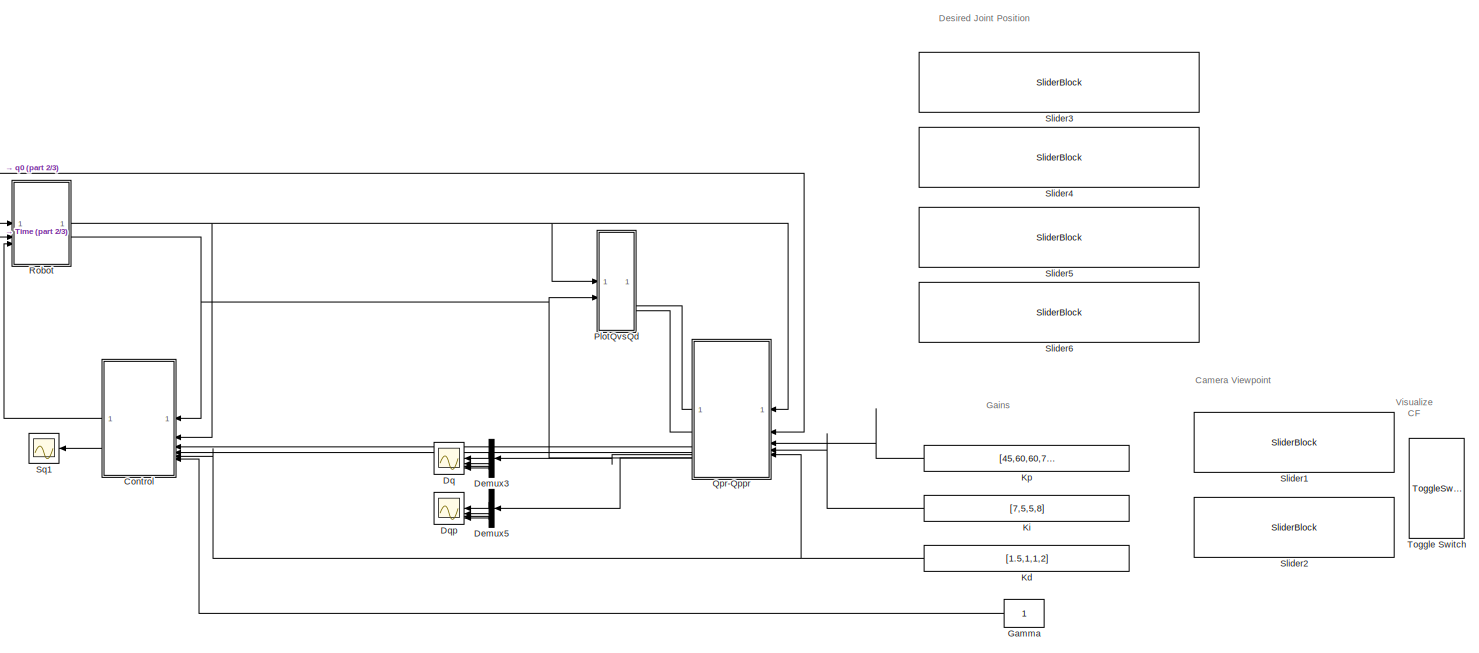
[diagram: root canvas - part 1/3, most of the canvas]
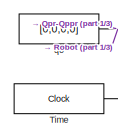
[diagram: root canvas - part 2/3, middle left region]
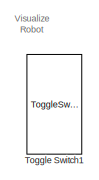
[diagram: root canvas - part 3/3, bottom right region]
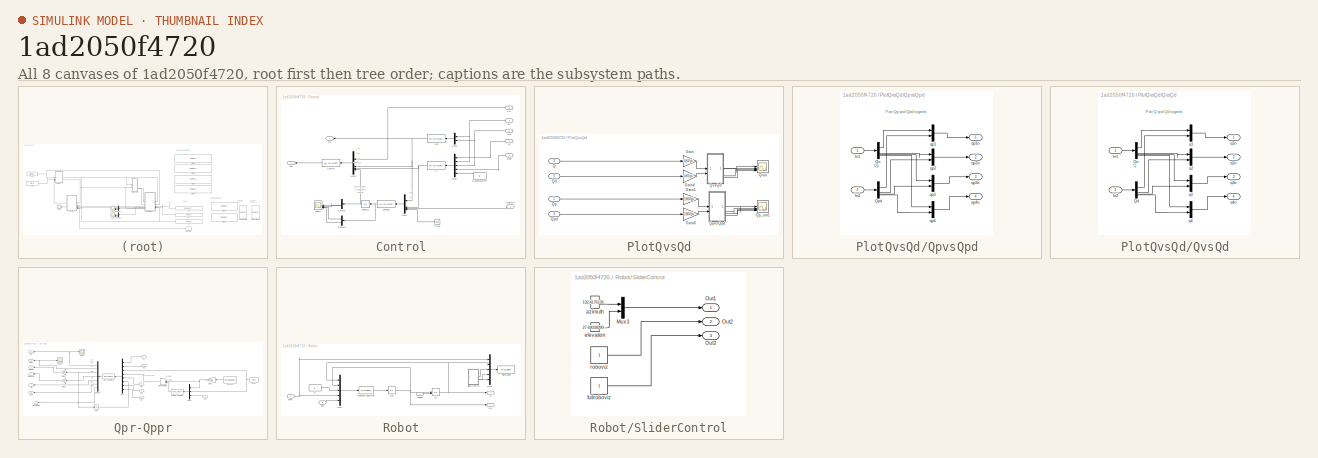
[diagram: thumbnail index - all 8 canvases of the model, root first then tree order]
MODEL slx_1ad2050f4720
KIND model
CONFIG AbsTol = auto
CONFIG EnableMultiTasking = on
CONFIG FixedStep = 0.001
CONFIG MaxStep = auto
CONFIG MinStep = auto
CONFIG RelTol = 1e-3
CONFIG SampleTimeConstraint = Unconstrained
CONFIG SolverName = ode1
CONFIG StartTime = 0.0
CONFIG StopTime = 75
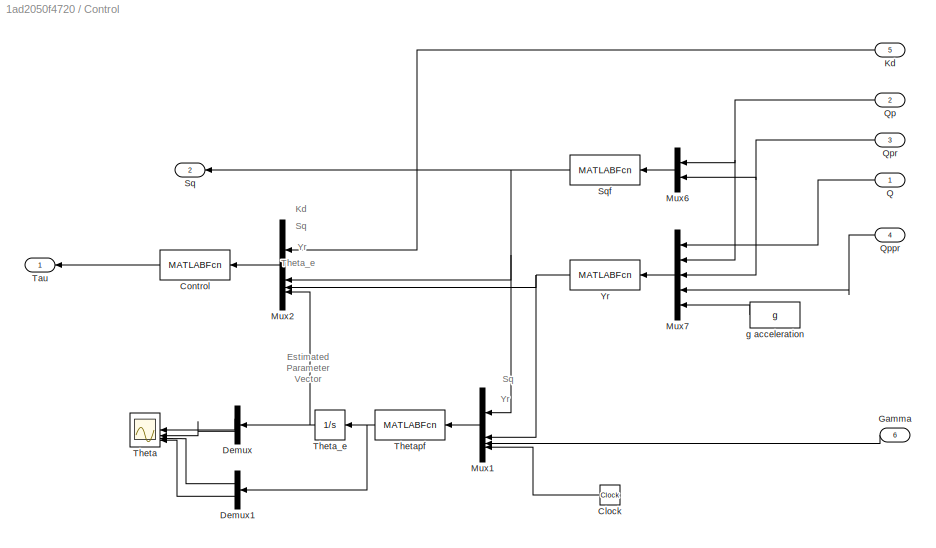
BLOCK [SubSystem] Control
BLOCK [Clock] Control/Clock
BLOCK [MATLABFcn] Control/Control
  MATLABFcn = tauAdaptivePIDR(u)
  OutputDimensions = 4
BLOCK [Demux] Control/Demux
  Outputs = 2
BLOCK [Demux] Control/Demux1
  Outputs = 2
BLOCK [Inport] Control/Gamma
  Port = 6
BLOCK [Inport] Control/Kd
  Port = 5
BLOCK [Mux] Control/Mux1
  DisplayOption = bar
BLOCK [Mux] Control/Mux2
  DisplayOption = bar
BLOCK [Mux] Control/Mux6
  DisplayOption = bar
  Inputs = 2
BLOCK [Mux] Control/Mux7
  DisplayOption = bar
  Inputs = 5
BLOCK [Inport] Control/Q
BLOCK [Inport] Control/Qp
  Port = 2
BLOCK [Inport] Control/Qppr
  Port = 4
BLOCK [Inport] Control/Qpr
  Port = 3
BLOCK [Outport] Control/Sq
  Port = 2
BLOCK [MATLABFcn] Control/Sqf
  MATLABFcn = Sq_abbIRB4(u)
  OutputDimensions = 4
BLOCK [Outport] Control/Tau
BLOCK [Scope] Control/Theta
  Floating = off
  NumInputPorts = 4
  ScopeSpecificationString = Simulink.scopes.TimeScopeBlockCfg('CurrentConfiguration', extmgr.ConfigurationSet(extmgr.Configuration('Core','General UI',true),extmgr.Configuration('Core','Source UI',true),extmgr.Configuration('Sources','WiredSimulink',true,'DataLoggingVariableName','ScopeData1'),extmgr.Configuration('Visuals','Time Domain',true,'SerializedDisplays',{struct('MinYLimReal','-0.74878','MaxYLimReal','2.15666','YLab...<+5805ch>
BLOCK [Integrator] Control/Theta_e
BLOCK [MATLABFcn] Control/Thetapf
  MATLABFcn = thetaHatDot_abbIRB4(u)
  OutputDimensions = 39
BLOCK [MATLABFcn] Control/Yr
  MATLABFcn = Yr_abbIRB4(u)
  OutputDimensions = 4*39
BLOCK [Constant] Control/g acceleration
  Value = g
BLOCK [Demux] Demux3
BLOCK [Demux] Demux5
BLOCK [Scope] Dq
  Floating = off
  NumInputPorts = 4
  ScopeSpecificationString = Simulink.scopes.TimeScopeBlockCfg('CurrentConfiguration', extmgr.ConfigurationSet(extmgr.Configuration('Core','General UI',true),extmgr.Configuration('Core','Source UI',true),extmgr.Configuration('Sources','WiredSimulink',true,'DataLoggingVariableName','ScopeData1'),extmgr.Configuration('Visuals','Time Domain',true,'SerializedDisplays',{struct('MinYLimReal','-0.2828','MaxYLimReal','0.4031','YLabel...<+3452ch>
BLOCK [Scope] Dqp
  Floating = off
  NumInputPorts = 4
  ScopeSpecificationString = Simulink.scopes.TimeScopeBlockCfg('CurrentConfiguration', extmgr.ConfigurationSet(extmgr.Configuration('Core','General UI',true),extmgr.Configuration('Core','Source UI',true),extmgr.Configuration('Sources','WiredSimulink',true,'DataLoggingVariableName','ScopeData1'),extmgr.Configuration('Visuals','Time Domain',true,'SerializedDisplays',{struct('MinYLimReal','-41.44158','MaxYLimReal','90.81224','YL...<+3424ch>
BLOCK [Constant] Gamma
BLOCK [Constant] Kd
  Value = [1.5,1,1,2]
BLOCK [Constant] Ki
  Value = [7,5,5,8]
BLOCK [Constant] Kp
  Value = [45,60,60,75]
BLOCK [SubSystem] PlotQvsQd
  PortSchema = {"entries":[{"content":{"sides":[{"content":{"connectorIds":["In1","In2"]},"type":"ConnectorPlacement.EquallySpacedRectSide","uuid":"0ee6224f-6764-463a-9bad-8b013ba062e4"},{"content":{"connectorIds":["In3","In4"],"side":"RIGHT"},"type":"ConnectorPlacement.EquallySpacedRectSide","uuid":"0aa5cc1a-1f9a-4b91-a80f-0f5a47f21dc5"},{"content":{"connectorIds":[],"side":"TOP"},"type":"ConnectorPlacement.Equ...<+251ch>
BLOCK [Gain] PlotQvsQd/Gain
  Gain = 180/pi
BLOCK [Gain] PlotQvsQd/Gain1
  Gain = 180/pi
BLOCK [Gain] PlotQvsQd/Gain4
  Gain = 180/pi
BLOCK [Gain] PlotQvsQd/Gain6
  Gain = 180/pi
BLOCK [Inport] PlotQvsQd/Q
  Port = 2
BLOCK [Inport] PlotQvsQd/Qd
  Port = 3
BLOCK [Scope] PlotQvsQd/Qout
  Floating = off
  NumInputPorts = 4
  ScopeSpecificationString = Simulink.scopes.TimeScopeBlockCfg('CurrentConfiguration', extmgr.ConfigurationSet(extmgr.Configuration('Core','General UI',true,'FigureColor',[0 0 0]),extmgr.Configuration('Core','Source UI',true),extmgr.Configuration('Sources','WiredSimulink',true,'DataLoggingVariableName','ScopeData1'),extmgr.Configuration('Visuals','Time Domain',true,'SerializedDisplays',{struct('MinYLimReal','-11.54395','MaxYL...<+3854ch>
BLOCK [Inport] PlotQvsQd/Qp
BLOCK [Scope] PlotQvsQd/Qp_out1
  Floating = off
  NumInputPorts = 4
  ScopeSpecificationString = Simulink.scopes.TimeScopeBlockCfg('CurrentConfiguration', extmgr.ConfigurationSet(extmgr.Configuration('Core','General UI',true),extmgr.Configuration('Core','Source UI',true),extmgr.Configuration('Sources','WiredSimulink',true,'DataLoggingVariableName','ScopeData2'),extmgr.Configuration('Visuals','Time Domain',true,'SerializedDisplays',{struct('MinYLimReal','-145.33873','MaxYLimReal','212.08328','...<+3524ch>
BLOCK [Inport] PlotQvsQd/Qpd
  Port = 4
BLOCK [SubSystem] PlotQvsQd/QpvsQpd
BLOCK [Inport] PlotQvsQd/QpvsQpd/In1
BLOCK [Inport] PlotQvsQd/QpvsQpd/In2
  Port = 2
BLOCK [Demux] PlotQvsQd/QpvsQpd/Qo
BLOCK [Demux] PlotQvsQd/QpvsQpd/Qpd
BLOCK [Mux] PlotQvsQd/QpvsQpd/qp1
  DisplayOption = bar
  Inputs = 2
BLOCK [Outport] PlotQvsQd/QpvsQpd/qp1o
BLOCK [Mux] PlotQvsQd/QpvsQpd/qp2
  DisplayOption = bar
  Inputs = 2
BLOCK [Outport] PlotQvsQd/QpvsQpd/qp2o
  Port = 2
BLOCK [Mux] PlotQvsQd/QpvsQpd/qp3
  DisplayOption = bar
  Inputs = 2
BLOCK [Outport] PlotQvsQd/QpvsQpd/qp3o
  Port = 3
BLOCK [Mux] PlotQvsQd/QpvsQpd/qp4
  DisplayOption = bar
  Inputs = 2
BLOCK [Outport] PlotQvsQd/QpvsQpd/qp4o
  Port = 4
BLOCK [SubSystem] PlotQvsQd/QvsQd
BLOCK [Inport] PlotQvsQd/QvsQd/In1
BLOCK [Inport] PlotQvsQd/QvsQd/In2
  Port = 2
BLOCK [Demux] PlotQvsQd/QvsQd/Qd
BLOCK [Demux] PlotQvsQd/QvsQd/Qo
BLOCK [Mux] PlotQvsQd/QvsQd/q1
  DisplayOption = bar
  Inputs = 2
BLOCK [Outport] PlotQvsQd/QvsQd/q1o
BLOCK [Mux] PlotQvsQd/QvsQd/q2
  DisplayOption = bar
  Inputs = 2
BLOCK [Outport] PlotQvsQd/QvsQd/q2o
  Port = 2
BLOCK [Mux] PlotQvsQd/QvsQd/q3
  DisplayOption = bar
  Inputs = 2
BLOCK [Outport] PlotQvsQd/QvsQd/q3o
  Port = 3
BLOCK [Mux] PlotQvsQd/QvsQd/q4
  DisplayOption = bar
  Inputs = 2
BLOCK [Outport] PlotQvsQd/QvsQd/q4o
  Port = 4
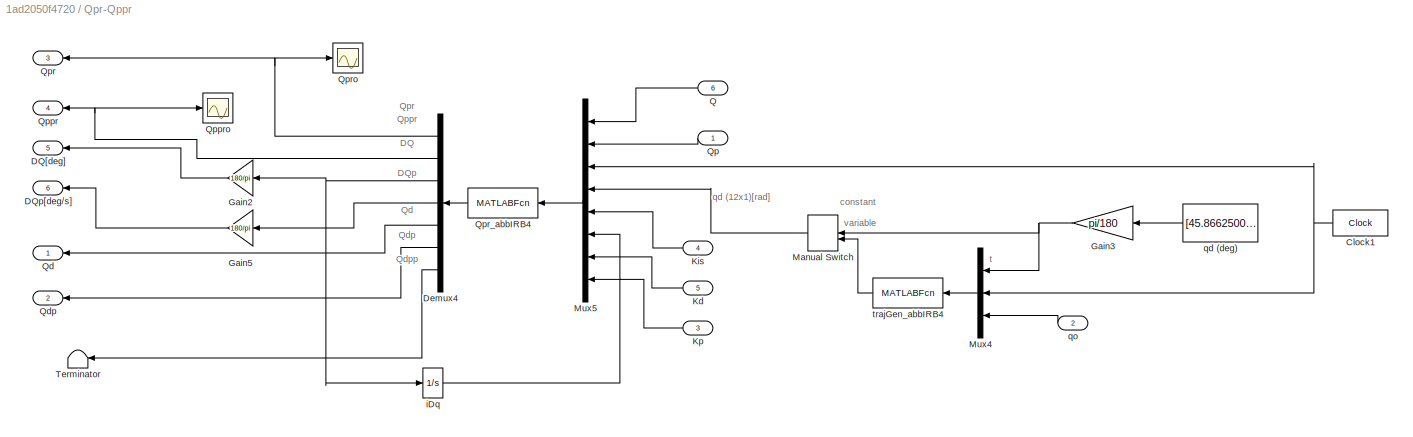
BLOCK [SubSystem] Qpr-Qppr
  PortSchema = {"entries":[{"content":{"sides":[{"content":{"connectorIds":["In1","In2","In3","In4","In5"]},"type":"ConnectorPlacement.EquallySpacedRectSide","uuid":"7dbdf085-398c-44a0-9fac-a1aff608b1f8"},{"content":{"connectorIds":["Out1","Out2","In6","Out3","Out4","Out5","Out6"],"side":"RIGHT"},"type":"ConnectorPlacement.EquallySpacedRectSide","uuid":"148c2c27-15e0-4cef-94d9-b1afb135f7fd"},{"content":{"connect...<+305ch>
BLOCK [Clock] Qpr-Qppr/Clock1
  DisplayTime = on
BLOCK [Outport] Qpr-Qppr/DQ[deg]
  Port = 5
BLOCK [Outport] Qpr-Qppr/DQp[deg//s]
  Port = 6
BLOCK [Demux] Qpr-Qppr/Demux4
  Outputs = 7
BLOCK [Gain] Qpr-Qppr/Gain2
  Gain = 180/pi
BLOCK [Gain] Qpr-Qppr/Gain3
  Gain = pi/180
BLOCK [Gain] Qpr-Qppr/Gain5
  Gain = 180/pi
BLOCK [Inport] Qpr-Qppr/Kd
  Port = 5
BLOCK [Inport] Qpr-Qppr/Kis
  Port = 4
BLOCK [Inport] Qpr-Qppr/Kp
  Port = 3
BLOCK [ManualSwitch] Qpr-Qppr/Manual Switch
  CurrentSetting = 0
BLOCK [Mux] Qpr-Qppr/Mux4
  DisplayOption = bar
  Inputs = 3
BLOCK [Mux] Qpr-Qppr/Mux5
  DisplayOption = bar
  Inputs = 8
BLOCK [Inport] Qpr-Qppr/Q
  Port = 6
BLOCK [Outport] Qpr-Qppr/Qd
BLOCK [Outport] Qpr-Qppr/Qdp
  Port = 2
BLOCK [Inport] Qpr-Qppr/Qp
BLOCK [Outport] Qpr-Qppr/Qppr
  Port = 4
BLOCK [Scope] Qpr-Qppr/Qppro
  Floating = off
  NumInputPorts = 1
  ScopeSpecificationString = Simulink.scopes.TimeScopeBlockCfg('CurrentConfiguration', extmgr.ConfigurationSet(extmgr.Configuration('Core','General UI',true),extmgr.Configuration('Core','Source UI',true),extmgr.Configuration('Sources','WiredSimulink',true,'DataLoggingVariableName','ScopeData3','DataLoggingSaveFormat','StructureWithTime','DataLoggingDecimation','1','DataLoggingDecimateData',true),extmgr.Configuration('Visuals'...<+1735ch>
BLOCK [Outport] Qpr-Qppr/Qpr
  Port = 3
BLOCK [MATLABFcn] Qpr-Qppr/Qpr_abbIRB4
  MATLABFcn = Qpr_abbIRB4(u)
  OutputDimensions = 28
BLOCK [Scope] Qpr-Qppr/Qpro
  Floating = off
  NumInputPorts = 1
  ScopeSpecificationString = Simulink.scopes.TimeScopeBlockCfg('CurrentConfiguration', extmgr.ConfigurationSet(extmgr.Configuration('Core','General UI',true),extmgr.Configuration('Core','Source UI',true),extmgr.Configuration('Sources','WiredSimulink',true,'DataLoggingVariableName','ScopeData2','DataLoggingSaveFormat','StructureWithTime','DataLoggingDecimation','1','DataLoggingDecimateData',true),extmgr.Configuration('Visuals'...<+1735ch>
BLOCK [Terminator] Qpr-Qppr/Terminator
BLOCK [Integrator] Qpr-Qppr/iDq
BLOCK [Constant] Qpr-Qppr/qd (deg)
  Value = [45.86625000000001,-46.67625,44.04374999999999,-44.51625,0,0,0,0,0,0,0,0]
BLOCK [Inport] Qpr-Qppr/qo
  Port = 2
BLOCK [MATLABFcn] Qpr-Qppr/trajGen_abbIRB4
  MATLABFcn = trajGen_abbIRB4(u)
  OutputDimensions = 12
BLOCK [SubSystem] Robot
BLOCK [MATLABFcn] Robot/Dinamica abbIRB4
  MATLABFcn = Dinamic_abbIRB4HP(u)
  OutputDimensions = 4
BLOCK [Mux] Robot/Mux
  DisplayOption = bar
  Inputs = 5
BLOCK [Mux] Robot/Mux1
  DisplayOption = bar
  Inputs = 5
BLOCK [MATLABFcn] Robot/PlotRobot
  MATLABFcn = plotRobotJAda(u)
  OutputDimensions = 0
BLOCK [Outport] Robot/Q
  Port = 2
BLOCK [Integrator] Robot/Qi
  InitialCondition = [0;0;0;0]
  InitialConditionSource = external
BLOCK [Inport] Robot/Qinitial
BLOCK [Outport] Robot/Qp
BLOCK [Integrator] Robot/Qpi
  InitialCondition = [0;0;0;0]
BLOCK [SubSystem] Robot/SliderControl
BLOCK [Mux] Robot/SliderControl/Mux3
  DisplayOption = bar
  Inputs = 2
BLOCK [Outport] Robot/SliderControl/Out1
BLOCK [Outport] Robot/SliderControl/Out2
  Port = 2
BLOCK [Outport] Robot/SliderControl/Out3
  Port = 3
BLOCK [Constant] Robot/SliderControl/azimuth
  Value = 132.4176136363636
BLOCK [Constant] Robot/SliderControl/elevation
  Value = 27.69034090909091
BLOCK [Constant] Robot/SliderControl/fullroboviz
BLOCK [Constant] Robot/SliderControl/roboviz
BLOCK [Inport] Robot/Tau
  Port = 3
BLOCK [Constant] Robot/g
  Value = g
BLOCK [Inport] Robot/time
  Port = 2
BLOCK [SliderBlock] Slider1
  ScaleMax = 180
  ScaleMin = -180
  TickInterval = 45
BLOCK [SliderBlock] Slider2
  ScaleMax = 180
  ScaleMin = -180
  TickInterval = 45
BLOCK [SliderBlock] Slider3
  ScaleMax = 90
  ScaleMin = -90
  TickInterval = 45
BLOCK [SliderBlock] Slider4
  ScaleMax = 90
  ScaleMin = -90
  TickInterval = 45
BLOCK [SliderBlock] Slider5
  ScaleMax = 90
  ScaleMin = -90
  TickInterval = 45
BLOCK [SliderBlock] Slider6
  ScaleMax = 90
  ScaleMin = -90
  TickInterval = 45
BLOCK [Scope] Sq1
  Floating = off
  NumInputPorts = 1
  ScopeSpecificationString = Simulink.scopes.TimeScopeBlockCfg('CurrentConfiguration', extmgr.ConfigurationSet(extmgr.Configuration('Core','General UI',true),extmgr.Configuration('Core','Source UI',true),extmgr.Configuration('Sources','WiredSimulink',true,'DataLoggingVariableName','ScopeData4','DataLoggingSaveFormat','StructureWithTime','DataLoggingDecimation','1','DataLoggingDecimateData',true),extmgr.Configuration('Visuals'...<+1763ch>
BLOCK [Clock] Time
  DisplayTime = on
BLOCK [ToggleSwitchBlock] Toggle Switch
BLOCK [ToggleSwitchBlock] Toggle Switch1
BLOCK [Constant] q0
  Value = [0,0,0,0]
ANNOTATION (root): Visualize Robot
ANNOTATION (root): Visualize CF
ANNOTATION (root): Camera Viewpoint
ANNOTATION (root): Desired Joint Position
ANNOTATION (root): Gains
ANNOTATION Control: Estimated Parameter Vector
ANNOTATION Control: Kd
ANNOTATION Control: Sq
ANNOTATION Control: Theta_e
ANNOTATION Control: Yr
ANNOTATION PlotQvsQd/QpvsQpd: Pair Qp qnd Qpd siganls
ANNOTATION PlotQvsQd/QpvsQpd: Qp
ANNOTATION PlotQvsQd/QvsQd: Pair Q qnd Qd siganls
ANNOTATION PlotQvsQd/QvsQd: Q
ANNOTATION Qpr-Qppr: DQ
ANNOTATION Qpr-Qppr: DQp
ANNOTATION Qpr-Qppr: Qd
ANNOTATION Qpr-Qppr: Qdp
ANNOTATION Qpr-Qppr: Qdpp
ANNOTATION Qpr-Qppr: Qppr
ANNOTATION Qpr-Qppr: Qpr
ANNOTATION Qpr-Qppr: constant
ANNOTATION Qpr-Qppr: qd (12x1)[rad]
ANNOTATION Qpr-Qppr: t
ANNOTATION Qpr-Qppr: variable
LINE Control/Clock:1 -> Control/Mux1:4
LINE Control/Control:1 -> Control/Tau:1
LINE Control/Demux1:1 -> Control/Theta:3
LINE Control/Demux1:2 -> Control/Theta:4
LINE Control/Demux:1 -> Control/Theta:1
LINE Control/Demux:2 -> Control/Theta:2
LINE Control/Gamma:1 -> Control/Mux1:3
LINE Control/Kd:1 -> Control/Mux2:1
LINE Control/Mux1:1 -> Control/Thetapf:1
LINE Control/Mux2:1 -> Control/Control:1
LINE Control/Mux6:1 -> Control/Sqf:1
LINE Control/Mux7:1 -> Control/Yr:1
LINE Control/Q:1 -> Control/Mux7:1
NET Control/Qp:1 -> Control/Mux6:1, Control/Mux7:2
LINE Control/Qppr:1 -> Control/Mux7:4
NET Control/Qpr:1 -> Control/Mux6:2, Control/Mux7:3
NET Control/Sqf:1 -> Control/Mux1:1, Control/Mux2:2, Control/Sq:1
NET Control/Theta_e:1 -> Control/Demux:1, Control/Mux2:4
NET Control/Thetapf:1 -> Control/Demux1:1, Control/Theta_e:1
NET Control/Yr:1 -> Control/Mux1:2, Control/Mux2:3
LINE Control/g acceleration:1 -> Control/Mux7:5
LINE Control:1 -> Robot:3
LINE Control:2 -> Sq1:1
LINE Demux3:1 -> Dq:1
LINE Demux3:2 -> Dq:2
LINE Demux3:3 -> Dq:3
LINE Demux3:4 -> Dq:4
LINE Demux5:1 -> Dqp:1
LINE Demux5:2 -> Dqp:2
LINE Demux5:3 -> Dqp:3
LINE Demux5:4 -> Dqp:4
LINE Gamma:1 -> Control:6
NET Kd:1 -> Control:5, Qpr-Qppr:5
LINE Ki:1 -> Qpr-Qppr:4
LINE Kp:1 -> Qpr-Qppr:3
LINE PlotQvsQd/Gain1:1 -> PlotQvsQd/QpvsQpd:1
LINE PlotQvsQd/Gain4:1 -> PlotQvsQd/QvsQd:2
LINE PlotQvsQd/Gain6:1 -> PlotQvsQd/QpvsQpd:2
LINE PlotQvsQd/Gain:1 -> PlotQvsQd/QvsQd:1
LINE PlotQvsQd/Q:1 -> PlotQvsQd/Gain:1
LINE PlotQvsQd/Qd:1 -> PlotQvsQd/Gain4:1
LINE PlotQvsQd/Qp:1 -> PlotQvsQd/Gain1:1
LINE PlotQvsQd/Qpd:1 -> PlotQvsQd/Gain6:1
LINE PlotQvsQd/QpvsQpd/In1:1 -> PlotQvsQd/QpvsQpd/Qo:1
LINE PlotQvsQd/QpvsQpd/In2:1 -> PlotQvsQd/QpvsQpd/Qpd:1
LINE PlotQvsQd/QpvsQpd/Qo:1 -> PlotQvsQd/QpvsQpd/qp1:1
LINE PlotQvsQd/QpvsQpd/Qo:2 -> PlotQvsQd/QpvsQpd/qp2:1
LINE PlotQvsQd/QpvsQpd/Qo:3 -> PlotQvsQd/QpvsQpd/qp3:1
LINE PlotQvsQd/QpvsQpd/Qo:4 -> PlotQvsQd/QpvsQpd/qp4:1
LINE PlotQvsQd/QpvsQpd/Qpd:1 -> PlotQvsQd/QpvsQpd/qp1:2
LINE PlotQvsQd/QpvsQpd/Qpd:2 -> PlotQvsQd/QpvsQpd/qp2:2
LINE PlotQvsQd/QpvsQpd/Qpd:3 -> PlotQvsQd/QpvsQpd/qp3:2
LINE PlotQvsQd/QpvsQpd/Qpd:4 -> PlotQvsQd/QpvsQpd/qp4:2
LINE PlotQvsQd/QpvsQpd/qp1:1 -> PlotQvsQd/QpvsQpd/qp1o:1
LINE PlotQvsQd/QpvsQpd/qp2:1 -> PlotQvsQd/QpvsQpd/qp2o:1
LINE PlotQvsQd/QpvsQpd/qp3:1 -> PlotQvsQd/QpvsQpd/qp3o:1
LINE PlotQvsQd/QpvsQpd/qp4:1 -> PlotQvsQd/QpvsQpd/qp4o:1
LINE PlotQvsQd/QpvsQpd:1 -> PlotQvsQd/Qp_out1:1
LINE PlotQvsQd/QpvsQpd:2 -> PlotQvsQd/Qp_out1:2
LINE PlotQvsQd/QpvsQpd:3 -> PlotQvsQd/Qp_out1:3
LINE PlotQvsQd/QpvsQpd:4 -> PlotQvsQd/Qp_out1:4
LINE PlotQvsQd/QvsQd/In1:1 -> PlotQvsQd/QvsQd/Qo:1
LINE PlotQvsQd/QvsQd/In2:1 -> PlotQvsQd/QvsQd/Qd:1
LINE PlotQvsQd/QvsQd/Qd:1 -> PlotQvsQd/QvsQd/q1:2
LINE PlotQvsQd/QvsQd/Qd:2 -> PlotQvsQd/QvsQd/q2:2
LINE PlotQvsQd/QvsQd/Qd:3 -> PlotQvsQd/QvsQd/q3:2
LINE PlotQvsQd/QvsQd/Qd:4 -> PlotQvsQd/QvsQd/q4:2
LINE PlotQvsQd/QvsQd/Qo:1 -> PlotQvsQd/QvsQd/q1:1
LINE PlotQvsQd/QvsQd/Qo:2 -> PlotQvsQd/QvsQd/q2:1
LINE PlotQvsQd/QvsQd/Qo:3 -> PlotQvsQd/QvsQd/q3:1
LINE PlotQvsQd/QvsQd/Qo:4 -> PlotQvsQd/QvsQd/q4:1
LINE PlotQvsQd/QvsQd/q1:1 -> PlotQvsQd/QvsQd/q1o:1
LINE PlotQvsQd/QvsQd/q2:1 -> PlotQvsQd/QvsQd/q2o:1
LINE PlotQvsQd/QvsQd/q3:1 -> PlotQvsQd/QvsQd/q3o:1
LINE PlotQvsQd/QvsQd/q4:1 -> PlotQvsQd/QvsQd/q4o:1
LINE PlotQvsQd/QvsQd:1 -> PlotQvsQd/Qout:1
LINE PlotQvsQd/QvsQd:2 -> PlotQvsQd/Qout:2
LINE PlotQvsQd/QvsQd:3 -> PlotQvsQd/Qout:3
LINE PlotQvsQd/QvsQd:4 -> PlotQvsQd/Qout:4
NET Qpr-Qppr/Clock1:1 -> Qpr-Qppr/Mux4:2, Qpr-Qppr/Mux5:3
NET Qpr-Qppr/Demux4:1 -> Qpr-Qppr/Qpr:1, Qpr-Qppr/Qpro:1
NET Qpr-Qppr/Demux4:2 -> Qpr-Qppr/Qppr:1, Qpr-Qppr/Qppro:1
NET Qpr-Qppr/Demux4:3 -> Qpr-Qppr/Gain2:1, Qpr-Qppr/iDq:1
LINE Qpr-Qppr/Demux4:4 -> Qpr-Qppr/Gain5:1
LINE Qpr-Qppr/Demux4:5 -> Qpr-Qppr/Qd:1
LINE Qpr-Qppr/Demux4:6 -> Qpr-Qppr/Qdp:1
LINE Qpr-Qppr/Demux4:7 -> Qpr-Qppr/Terminator:1
LINE Qpr-Qppr/Gain2:1 -> Qpr-Qppr/DQ[deg]:1
NET Qpr-Qppr/Gain3:1 -> Qpr-Qppr/Manual Switch:1, Qpr-Qppr/Mux4:1
LINE Qpr-Qppr/Gain5:1 -> Qpr-Qppr/DQp[deg//s]:1
LINE Qpr-Qppr/Kd:1 -> Qpr-Qppr/Mux5:7
LINE Qpr-Qppr/Kis:1 -> Qpr-Qppr/Mux5:5
LINE Qpr-Qppr/Kp:1 -> Qpr-Qppr/Mux5:8
LINE Qpr-Qppr/Manual Switch:1 -> Qpr-Qppr/Mux5:4
LINE Qpr-Qppr/Mux4:1 -> Qpr-Qppr/trajGen_abbIRB4:1
LINE Qpr-Qppr/Mux5:1 -> Qpr-Qppr/Qpr_abbIRB4:1
LINE Qpr-Qppr/Q:1 -> Qpr-Qppr/Mux5:1
LINE Qpr-Qppr/Qp:1 -> Qpr-Qppr/Mux5:2
LINE Qpr-Qppr/Qpr_abbIRB4:1 -> Qpr-Qppr/Demux4:1
LINE Qpr-Qppr/iDq:1 -> Qpr-Qppr/Mux5:6
LINE Qpr-Qppr/qd (deg):1 -> Qpr-Qppr/Gain3:1
LINE Qpr-Qppr/qo:1 -> Qpr-Qppr/Mux4:3
LINE Qpr-Qppr/trajGen_abbIRB4:1 -> Qpr-Qppr/Manual Switch:2
LINE Qpr-Qppr:1 -> PlotQvsQd:3
LINE Qpr-Qppr:2 -> PlotQvsQd:4
LINE Qpr-Qppr:3 -> Control:3
LINE Qpr-Qppr:4 -> Control:4
LINE Qpr-Qppr:5 -> Demux3:1
LINE Qpr-Qppr:6 -> Demux5:1
LINE Robot/Dinamica abbIRB4:1 -> Robot/Qpi:1
LINE Robot/Mux1:1 -> Robot/PlotRobot:1
LINE Robot/Mux:1 -> Robot/Dinamica abbIRB4:1
NET Robot/Qi:1 -> Robot/Mux1:2, Robot/Mux:1, Robot/Q:1
LINE Robot/Qinitial:1 -> Robot/Qi:2
NET Robot/Qpi:1 -> Robot/Mux:2, Robot/Qi:1, Robot/Qp:1
LINE Robot/SliderControl/Mux3:1 -> Robot/SliderControl/Out1:1
LINE Robot/SliderControl/azimuth:1 -> Robot/SliderControl/Mux3:1
LINE Robot/SliderControl/elevation:1 -> Robot/SliderControl/Mux3:2
LINE Robot/SliderControl/fullroboviz:1 -> Robot/SliderControl/Out3:1
LINE Robot/SliderControl/roboviz:1 -> Robot/SliderControl/Out2:1
LINE Robot/SliderControl:1 -> Robot/Mux1:3
LINE Robot/SliderControl:2 -> Robot/Mux1:4
LINE Robot/SliderControl:3 -> Robot/Mux1:5
LINE Robot/Tau:1 -> Robot/Mux:5
LINE Robot/g:1 -> Robot/Mux:3
NET Robot/time:1 -> Robot/Mux1:1, Robot/Mux:4
NET Robot:1 -> Control:2, PlotQvsQd:1, Qpr-Qppr:1
NET Robot:2 -> Control:1, PlotQvsQd:2, Qpr-Qppr:6
LINE Time:1 -> Robot:2
NET q0:1 -> Qpr-Qppr:2, Robot:1
note: NET lines group one-source signal fan-out (src -> all destinations, sorted); 1:1 wires keep LINE
